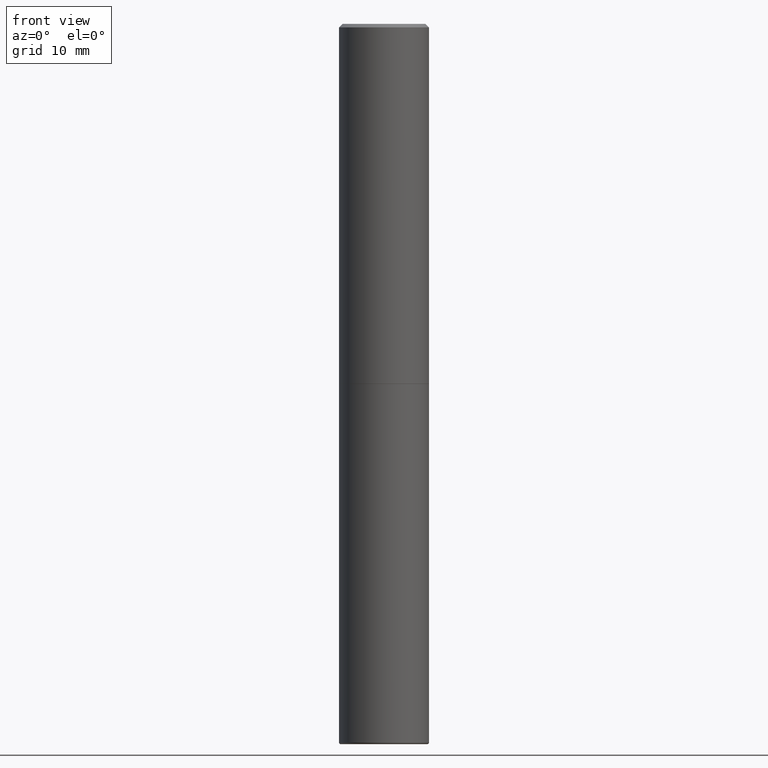
[diagram: clean part render]
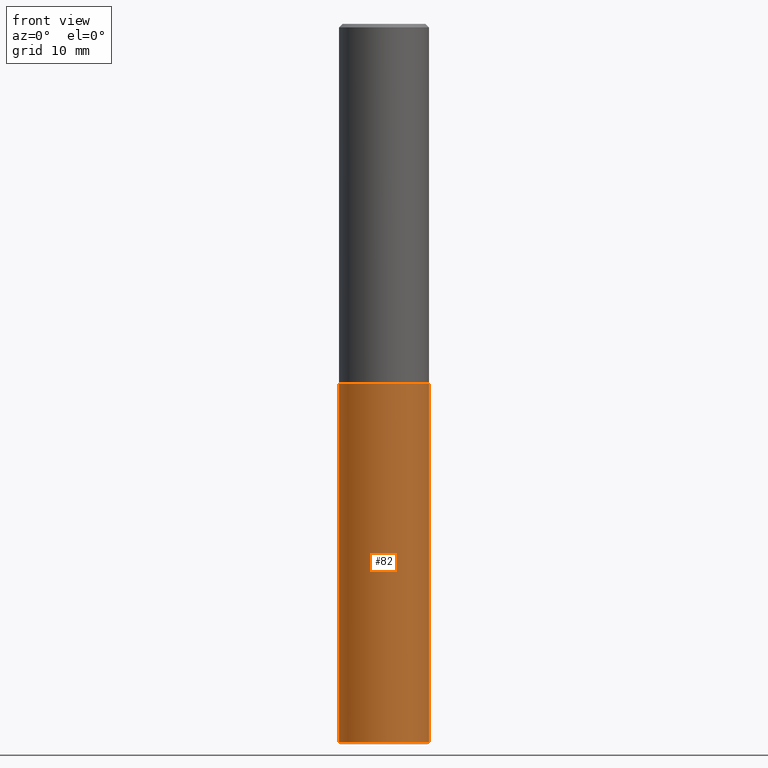
[diagram: same view with one face highlighted and labeled with its STEP entity id]
A machine part, front view. The second image highlights one B-rep face of the part: STEP entity #82.
In plain terms, the highlighted cylindrical surface (partial cylindrical patch) has radius 6.35 mm, axis along (-0, 0, 1).
Its self-contained STEP definition (entity closure, byte-faithful):
#15 = VERTEX_POINT ( 'NONE', #248 ) ;
#23 = LINE ( 'NONE', #100, #453 ) ;
#31 = VECTOR ( 'NONE', #407, 39.37007874015748143 ) ;
#46 = CARTESIAN_POINT ( 'NONE',  ( 0.2500000000000000555, -1.567675254085482873E-14, -3.990000380769358479 ) ) ;
#58 = ORIENTED_EDGE ( 'NONE', *, *, #224, .T. ) ;
#82 = ADVANCED_FACE ( 'NONE', ( #390 ), #119, .T. ) ;
#92 = EDGE_LOOP ( 'NONE', ( #402, #58, #128, #335 ) ) ;
#98 = VERTEX_POINT ( 'NONE', #46 ) ;
#100 = CARTESIAN_POINT ( 'NONE',  ( 0.2500000000000000000, -1.745740669421566678E-15, 1.219044193948983948E-29 ) ) ;
#119 = CYLINDRICAL_SURFACE ( 'NONE', #123, 0.2500000000000000000 ) ;
#123 = AXIS2_PLACEMENT_3D ( 'NONE', #272, #277, #232 ) ;
#128 = ORIENTED_EDGE ( 'NONE', *, *, #291, .T. ) ;
#131 = VERTEX_POINT ( 'NONE', #432 ) ;
#158 = EDGE_CURVE ( 'NONE', #245, #15, #468, .T. ) ;
#170 = DIRECTION ( 'NONE',  ( -2.445468806185136877E-29, 3.491481338843145188E-15, 1.000000000000000000 ) ) ;
#224 = EDGE_CURVE ( 'NONE', #131, #98, #445, .T. ) ;
#232 = DIRECTION ( 'NONE',  ( 1.000000000000000000, -6.982962677686266711E-15, 4.876176775795935793E-29 ) ) ;
#239 = CARTESIAN_POINT ( 'NONE',  ( 9.757421467838283463E-29, -1.393101187143326047E-14, -3.990000380769358479 ) ) ;
#244 = DIRECTION ( 'NONE',  ( 1.000000000000000000, -6.982962677686269077E-15, 0.000000000000000000 ) ) ;
#245 = VERTEX_POINT ( 'NONE', #403 ) ;
#247 = DIRECTION ( 'NONE',  ( -2.445468806185136597E-29, 3.491481338843145583E-15, 1.000000000000000000 ) ) ;
#248 = CARTESIAN_POINT ( 'NONE',  ( 0.2499999999999999722, -8.728703347107857054E-15, -2.000000000000000000 ) ) ;
#262 = AXIS2_PLACEMENT_3D ( 'NONE', #239, #247, #244 ) ;
#272 = CARTESIAN_POINT ( 'NONE',  ( 0.000000000000000000, 0.000000000000000000, 0.000000000000000000 ) ) ;
#277 = DIRECTION ( 'NONE',  ( -2.445468806185136597E-29, 3.491481338843145583E-15, 1.000000000000000000 ) ) ;
#286 = DIRECTION ( 'NONE',  ( 1.000000000000000000, -6.982962677686267499E-15, 0.000000000000000000 ) ) ;
#291 = EDGE_CURVE ( 'NONE', #98, #15, #23, .T. ) ;
#303 = LINE ( 'NONE', #416, #31 ) ;
#335 = ORIENTED_EDGE ( 'NONE', *, *, #158, .F. ) ;
#360 = CARTESIAN_POINT ( 'NONE',  ( 4.890937612370273194E-29, -6.982962677686291165E-15, -2.000000000000000000 ) ) ;
#390 = FACE_OUTER_BOUND ( 'NONE', #92, .T. ) ;
#398 = AXIS2_PLACEMENT_3D ( 'NONE', #360, #436, #286 ) ;
#402 = ORIENTED_EDGE ( 'NONE', *, *, #417, .F. ) ;
#403 = CARTESIAN_POINT ( 'NONE',  ( -0.2499999999999999722, -8.680630435159524960E-15, -2.000000000000000000 ) ) ;
#407 = DIRECTION ( 'NONE',  ( -2.445468806185136877E-29, 3.491481338843145188E-15, 1.000000000000000000 ) ) ;
#416 = CARTESIAN_POINT ( 'NONE',  ( -0.2500000000000000000, 1.776356839400250465E-15, -1.229733772563726445E-29 ) ) ;
#417 = EDGE_CURVE ( 'NONE', #131, #245, #303, .T. ) ;
#432 = CARTESIAN_POINT ( 'NONE',  ( -0.2500000000000000555, -8.680630435159524960E-15, -3.990000380769358479 ) ) ;
#436 = DIRECTION ( 'NONE',  ( -2.445468806185136597E-29, 3.491481338843145583E-15, 1.000000000000000000 ) ) ;
#445 = CIRCLE ( 'NONE', #262, 0.2500000000000000555 ) ;
#453 = VECTOR ( 'NONE', #170, 39.37007874015748143 ) ;
#468 = CIRCLE ( 'NONE', #398, 0.2499999999999999722 ) ;